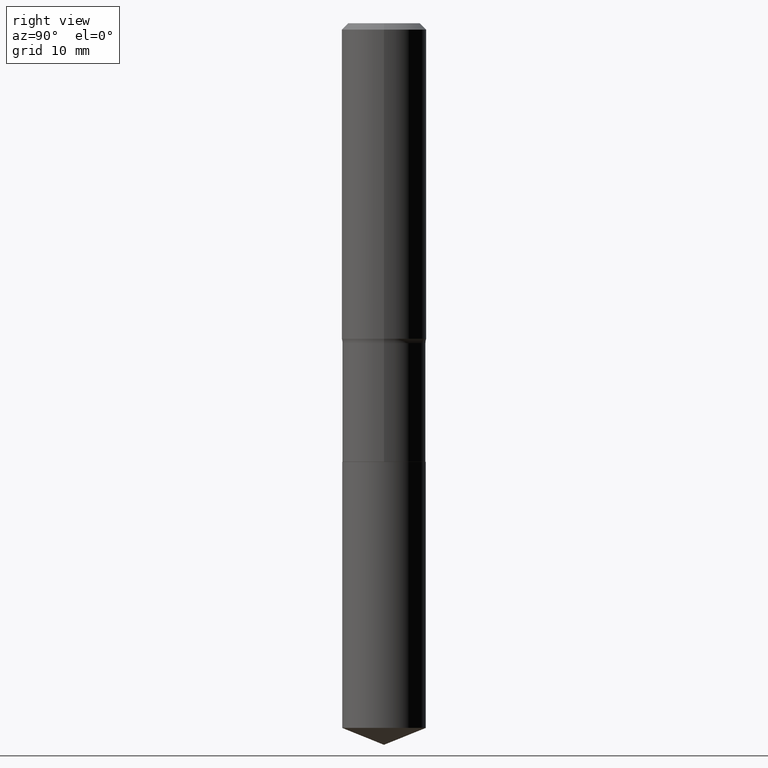
[diagram: clean part render]
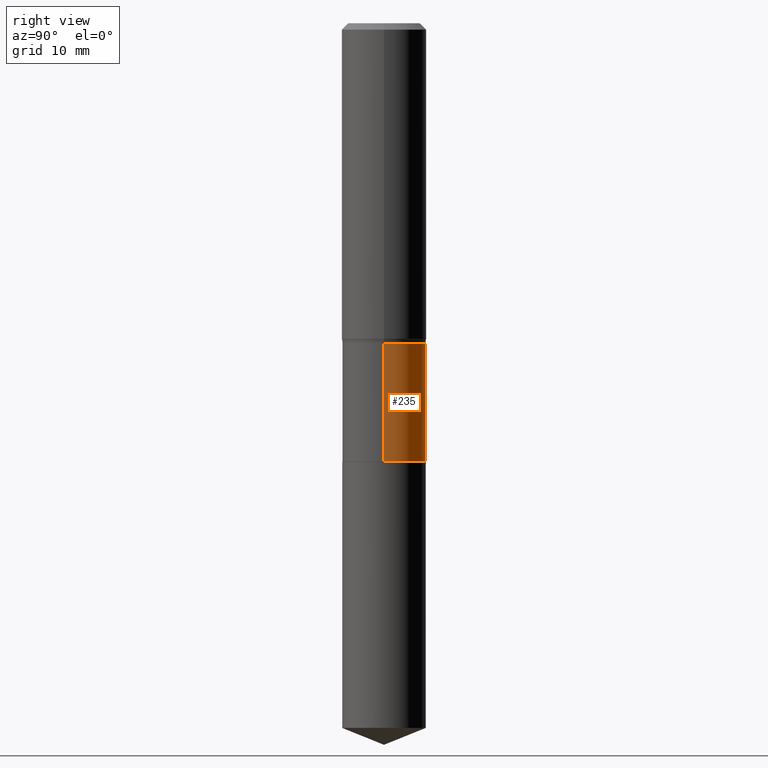
[diagram: same view with one face highlighted and labeled with its STEP entity id]
A machine part, right view. The second image highlights one B-rep face of the part: STEP entity #235.
In plain terms, the highlighted cylindrical surface (partial cylindrical patch) has radius 5.9004 mm, axis along (-0, 0, 1).
Its self-contained STEP definition (entity closure, byte-faithful):
#7 = CARTESIAN_POINT ( 'NONE',  ( -0.2322999999999999510, -5.718180590457746059E-15, -1.780599999999999961 ) ) ;
#12 = LINE ( 'NONE', #427, #331 ) ;
#24 = ORIENTED_EDGE ( 'NONE', *, *, #28, .F. ) ;
#27 = DIRECTION ( 'NONE',  ( 1.000000000000000000, -6.982962677686265922E-15, 4.876176775795935232E-29 ) ) ;
#28 = EDGE_CURVE ( 'NONE', #357, #86, #297, .T. ) ;
#32 = CARTESIAN_POINT ( 'NONE',  ( -0.2322999999999999787, 1.650590775170712581E-15, -1.142668621466214566E-29 ) ) ;
#41 = DIRECTION ( 'NONE',  ( 1.000000000000000000, -6.982962677686267499E-15, 0.000000000000000000 ) ) ;
#48 = AXIS2_PLACEMENT_3D ( 'NONE', #98, #370, #27 ) ;
#66 = DIRECTION ( 'NONE',  ( -2.445468806185136877E-29, 3.491481338843145188E-15, 1.000000000000000000 ) ) ;
#72 = CARTESIAN_POINT ( 'NONE',  ( 4.354401756293253585E-29, -6.216931671944104634E-15, -1.780599999999999961 ) ) ;
#76 = CARTESIAN_POINT ( 'NONE',  ( 5.967922074614207358E-29, -8.520611059312812251E-15, -2.440399999999999903 ) ) ;
#86 = VERTEX_POINT ( 'NONE', #7 ) ;
#95 = AXIS2_PLACEMENT_3D ( 'NONE', #72, #467, #41 ) ;
#98 = CARTESIAN_POINT ( 'NONE',  ( 0.000000000000000000, 0.000000000000000000, 0.000000000000000000 ) ) ;
#106 = FACE_OUTER_BOUND ( 'NONE', #286, .T. ) ;
#122 = CIRCLE ( 'NONE', #248, 0.2323000000000000065 ) ;
#141 = CYLINDRICAL_SURFACE ( 'NONE', #48, 0.2322999999999999787 ) ;
#166 = LINE ( 'NONE', #32, #412 ) ;
#183 = CARTESIAN_POINT ( 'NONE',  ( 0.2323000000000000065, -1.014275328933933174E-14, -2.440399999999999903 ) ) ;
#196 = ORIENTED_EDGE ( 'NONE', *, *, #403, .T. ) ;
#207 = CARTESIAN_POINT ( 'NONE',  ( 0.2322999999999999510, -7.839073901970624126E-15, -1.780599999999999961 ) ) ;
#217 = DIRECTION ( 'NONE',  ( 1.000000000000000000, -6.982962677686265922E-15, 0.000000000000000000 ) ) ;
#218 = EDGE_CURVE ( 'NONE', #404, #357, #12, .T. ) ;
#223 = DIRECTION ( 'NONE',  ( -2.445468806185136597E-29, 3.491481338843145583E-15, 1.000000000000000000 ) ) ;
#235 = ADVANCED_FACE ( 'NONE', ( #106 ), #141, .T. ) ;
#248 = AXIS2_PLACEMENT_3D ( 'NONE', #76, #223, #217 ) ;
#286 = EDGE_LOOP ( 'NONE', ( #196, #434, #24, #365 ) ) ;
#297 = CIRCLE ( 'NONE', #95, 0.2322999999999999510 ) ;
#331 = VECTOR ( 'NONE', #470, 39.37007874015748143 ) ;
#341 = EDGE_CURVE ( 'NONE', #447, #86, #166, .T. ) ;
#357 = VERTEX_POINT ( 'NONE', #207 ) ;
#365 = ORIENTED_EDGE ( 'NONE', *, *, #218, .F. ) ;
#370 = DIRECTION ( 'NONE',  ( -2.445468806185136597E-29, 3.491481338843145583E-15, 1.000000000000000000 ) ) ;
#375 = CARTESIAN_POINT ( 'NONE',  ( -0.2323000000000000342, -5.718180590457746059E-15, -2.440399999999999903 ) ) ;
#403 = EDGE_CURVE ( 'NONE', #404, #447, #122, .T. ) ;
#404 = VERTEX_POINT ( 'NONE', #183 ) ;
#412 = VECTOR ( 'NONE', #66, 39.37007874015748143 ) ;
#427 = CARTESIAN_POINT ( 'NONE',  ( 0.2322999999999999787, -1.622142230026519492E-15, 1.132735865017395680E-29 ) ) ;
#434 = ORIENTED_EDGE ( 'NONE', *, *, #341, .T. ) ;
#447 = VERTEX_POINT ( 'NONE', #375 ) ;
#467 = DIRECTION ( 'NONE',  ( -2.445468806185136597E-29, 3.491481338843145583E-15, 1.000000000000000000 ) ) ;
#470 = DIRECTION ( 'NONE',  ( -2.445468806185136877E-29, 3.491481338843145188E-15, 1.000000000000000000 ) ) ;